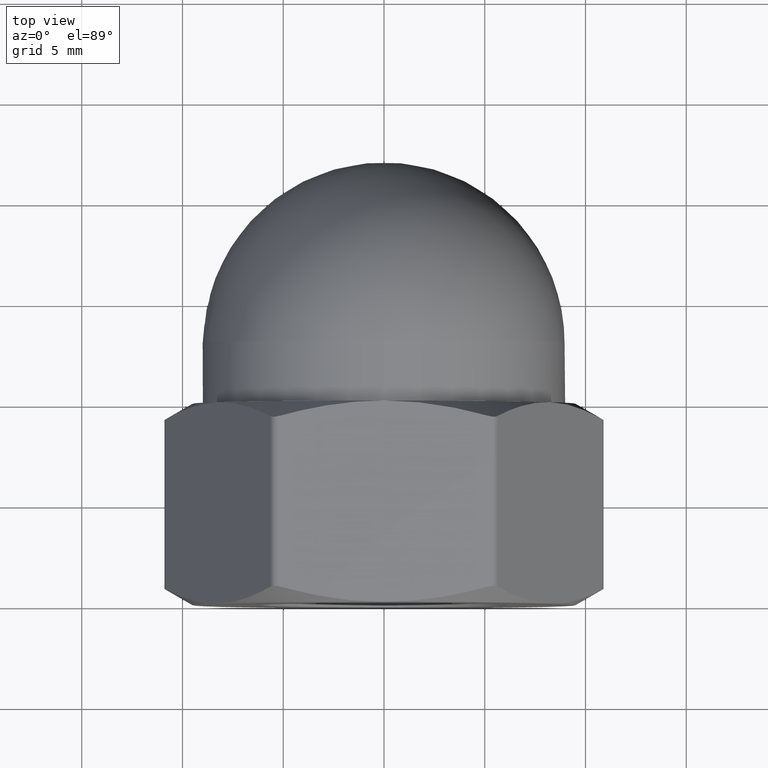
[diagram: clean part render]
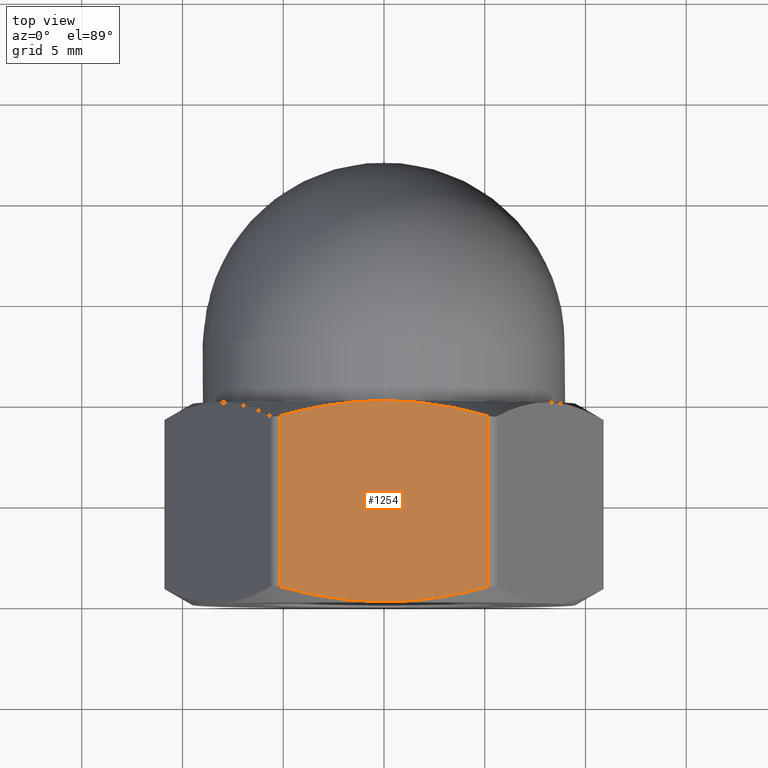
[diagram: same view with one face highlighted and labeled with its STEP entity id]
A machine part, top view. The second image highlights one B-rep face of the part: STEP entity #1254.
In plain terms, the highlighted planar face has unit normal (0, 0, -1).
Its self-contained STEP definition (entity closure, byte-faithful):
#7 = EDGE_CURVE ( 'NONE', #934, #1155, #368, .T. ) ;
#61 = CARTESIAN_POINT ( 'NONE',  ( 5.196152422706629400, 9.233161112797772000, 9.500000000000000000 ) ) ;
#80 = CARTESIAN_POINT ( 'NONE',  ( -5.196152422706708400, 0.7668388872022143800, 9.500000000000000000 ) ) ;
#88 = VECTOR ( 'NONE', #1016, 1000.000000000000000 ) ;
#117 = CARTESIAN_POINT ( 'NONE',  ( -0.8769579191400489500, 10.00000000000000000, 9.500000000000001800 ) ) ;
#133 = EDGE_CURVE ( 'NONE', #1087, #1077, #956, .T. ) ;
#137 = CARTESIAN_POINT ( 'NONE',  ( -0.8769579191400476100, -5.336307567702090300E-017, 9.499999999999998200 ) ) ;
#171 = CARTESIAN_POINT ( 'NONE',  ( 3.502637132481561300, 9.659066489143096800, 9.500000000000003600 ) ) ;
#177 = CARTESIAN_POINT ( 'NONE',  ( 0.8784862103107681200, 9.982381200358130300, 9.500000000000001800 ) ) ;
#188 = DIRECTION ( 'NONE',  ( 0.0000000000000000000, -1.000000000000000000, 0.0000000000000000000 ) ) ;
#189 = VERTEX_POINT ( 'NONE', #1108 ) ;
#251 = VECTOR ( 'NONE', #188, 1000.000000000000000 ) ;
#276 = ORIENTED_EDGE ( 'NONE', *, *, #1028, .F. ) ;
#287 = CARTESIAN_POINT ( 'NONE',  ( 4.354865280869849400, 0.5337567024198363000, 9.500000000000000000 ) ) ;
#315 = PLANE ( 'NONE',  #1245 ) ;
#324 = CARTESIAN_POINT ( 'NONE',  ( -1.748548221912291400, 9.928786257910827500, 9.500000000000000000 ) ) ;
#332 = ORIENTED_EDGE ( 'NONE', *, *, #7, .T. ) ;
#354 = CARTESIAN_POINT ( 'NONE',  ( 0.0000000000000000000, 0.0000000000000000000, 9.500000000000000000 ) ) ;
#368 = LINE ( 'NONE', #914, #88 ) ;
#384 = CARTESIAN_POINT ( 'NONE',  ( 0.0000000000000000000, 10.00000000000000000, 9.500000000000000000 ) ) ;
#403 = CARTESIAN_POINT ( 'NONE',  ( 0.8784862103107666800, 0.01761879964187338500, 9.500000000000001800 ) ) ;
#406 = CARTESIAN_POINT ( 'NONE',  ( 0.0000000000000000000, 0.0000000000000000000, 9.500000000000000000 ) ) ;
#458 = DIRECTION ( 'NONE',  ( -1.000000000000000000, 0.0000000000000000000, -0.0000000000000000000 ) ) ;
#490 = CARTESIAN_POINT ( 'NONE',  ( 5.196152422706632000, 0.7668388872022293700, 9.500000000000000000 ) ) ;
#498 = CARTESIAN_POINT ( 'NONE',  ( 0.0000000000000000000, 10.00000000000000000, 9.500000000000000000 ) ) ;
#521 = ORIENTED_EDGE ( 'NONE', *, *, #1075, .T. ) ;
#526 = CARTESIAN_POINT ( 'NONE',  ( 5.196152422706629400, 9.233161112797772000, 9.500000000000000000 ) ) ;
#547 = LINE ( 'NONE', #1266, #251 ) ;
#548 = ORIENTED_EDGE ( 'NONE', *, *, #133, .F. ) ;
#554 = DIRECTION ( 'NONE',  ( 0.0000000000000000000, 0.0000000000000000000, -1.000000000000000000 ) ) ;
#567 = CARTESIAN_POINT ( 'NONE',  ( -4.348666152671452100, 0.5320392075570165000, 9.500000000000001800 ) ) ;
#618 = CARTESIAN_POINT ( 'NONE',  ( 5.196152422706632000, 0.7668388872022293700, 9.500000000000000000 ) ) ;
#634 = CARTESIAN_POINT ( 'NONE',  ( -5.196152422706708400, 9.233161112797784400, 9.500000000000000000 ) ) ;
#644 = ORIENTED_EDGE ( 'NONE', *, *, #931, .F. ) ;
#647 = CARTESIAN_POINT ( 'NONE',  ( -3.482435840626833200, 9.663065989375692100, 9.500000000000001800 ) ) ;
#658 = B_SPLINE_CURVE_WITH_KNOTS ( 'NONE', 3,
 ( #634, #955, #647, #324, #117, #1060 ),
 .UNSPECIFIED., .F., .F.,
 ( 4, 2, 4 ),
 ( 0.01008431317107129200, 0.01270932973017928300, 0.01533434628928727300 ),
 .UNSPECIFIED. ) ;
#665 = CARTESIAN_POINT ( 'NONE',  ( -5.196152422706708400, 0.7668388872022143800, 9.500000000000000000 ) ) ;
#698 = CARTESIAN_POINT ( 'NONE',  ( 1.760928236677266500, 9.912279427820717400, 9.500000000000000000 ) ) ;
#716 = B_SPLINE_CURVE_WITH_KNOTS ( 'NONE', 3,
 ( #618, #287, #927, #819, #1271, #403, #1147, #406 ),
 .UNSPECIFIED., .F., .F.,
 ( 4, 2, 2, 4 ),
 ( 0.004320510210316323900, 0.006939413859408391000, 0.008248865683954425400, 0.009558317508500459000 ),
 .UNSPECIFIED. ) ;
#770 = CARTESIAN_POINT ( 'NONE',  ( -3.482435840626832300, 0.3369340106243105500, 9.500000000000000000 ) ) ;
#788 = ORIENTED_EDGE ( 'NONE', *, *, #1183, .F. ) ;
#819 = CARTESIAN_POINT ( 'NONE',  ( 2.200295668405329400, 0.1400073536209990300, 9.500000000000001800 ) ) ;
#914 = CARTESIAN_POINT ( 'NONE',  ( 5.196152422706631100, 10.00000000000000000, 9.500000000000000000 ) ) ;
#927 = CARTESIAN_POINT ( 'NONE',  ( 3.502637132481563900, 0.3409335108569043800, 9.500000000000001800 ) ) ;
#931 = EDGE_CURVE ( 'NONE', #1025, #1155, #1002, .T. ) ;
#934 = VERTEX_POINT ( 'NONE', #490 ) ;
#955 = CARTESIAN_POINT ( 'NONE',  ( -4.348666152671453800, 9.467960792442983800, 9.499999999999998200 ) ) ;
#956 = B_SPLINE_CURVE_WITH_KNOTS ( 'NONE', 3,
 ( #354, #137, #1098, #770, #567, #665 ),
 .UNSPECIFIED., .F., .F.,
 ( 4, 2, 4 ),
 ( 0.009558317508500459000, 0.01217662311715527300, 0.01479492872581008500 ),
 .UNSPECIFIED. ) ;
#1002 = B_SPLINE_CURVE_WITH_KNOTS ( 'NONE', 3,
 ( #384, #1343, #177, #698, #1336, #171, #1122, #61 ),
 .UNSPECIFIED., .F., .F.,
 ( 4, 2, 2, 4 ),
 ( 0.01533434628928727300, 0.01664715435547534800, 0.01795996242166341900, 0.02058557855403956400 ),
 .UNSPECIFIED. ) ;
#1016 = DIRECTION ( 'NONE',  ( -0.0000000000000000000, 1.000000000000000000, -0.0000000000000000000 ) ) ;
#1025 = VERTEX_POINT ( 'NONE', #498 ) ;
#1028 = EDGE_CURVE ( 'NONE', #934, #1087, #716, .T. ) ;
#1036 = CARTESIAN_POINT ( 'NONE',  ( 0.0000000000000000000, 0.0000000000000000000, 9.500000000000000000 ) ) ;
#1052 = FACE_OUTER_BOUND ( 'NONE', #1061, .T. ) ;
#1060 = CARTESIAN_POINT ( 'NONE',  ( 0.0000000000000000000, 10.00000000000000000, 9.500000000000000000 ) ) ;
#1061 = EDGE_LOOP ( 'NONE', ( #788, #521, #548, #276, #332, #644 ) ) ;
#1075 = EDGE_CURVE ( 'NONE', #189, #1077, #547, .T. ) ;
#1077 = VERTEX_POINT ( 'NONE', #80 ) ;
#1087 = VERTEX_POINT ( 'NONE', #1036 ) ;
#1098 = CARTESIAN_POINT ( 'NONE',  ( -1.748548221912291900, 0.07121374208917116700, 9.500000000000001800 ) ) ;
#1108 = CARTESIAN_POINT ( 'NONE',  ( -5.196152422706708400, 9.233161112797784400, 9.500000000000000000 ) ) ;
#1122 = CARTESIAN_POINT ( 'NONE',  ( 4.354865280869846700, 9.466243297580165400, 9.500000000000001800 ) ) ;
#1147 = CARTESIAN_POINT ( 'NONE',  ( 0.4385791114193124400, -5.345719044893807100E-017, 9.500000000000003600 ) ) ;
#1155 = VERTEX_POINT ( 'NONE', #526 ) ;
#1183 = EDGE_CURVE ( 'NONE', #189, #1025, #658, .T. ) ;
#1245 = AXIS2_PLACEMENT_3D ( 'NONE', #1297, #554, #458 ) ;
#1254 = ADVANCED_FACE ( 'NONE', ( #1052 ), #315, .F. ) ;
#1266 = CARTESIAN_POINT ( 'NONE',  ( -5.196152422706631100, 10.00000000000000000, 9.500000000000000000 ) ) ;
#1271 = CARTESIAN_POINT ( 'NONE',  ( 1.760928236677266100, 0.08772057217928332100, 9.500000000000001800 ) ) ;
#1297 = CARTESIAN_POINT ( 'NONE',  ( -5.484827557301444200, 10.00000000000000000, 9.500000000000000000 ) ) ;
#1336 = CARTESIAN_POINT ( 'NONE',  ( 2.200295668405327200, 9.859992646378998400, 9.500000000000001800 ) ) ;
#1343 = CARTESIAN_POINT ( 'NONE',  ( 0.4385791114193115500, 9.999999999999998200, 9.499999999999998200 ) ) ;